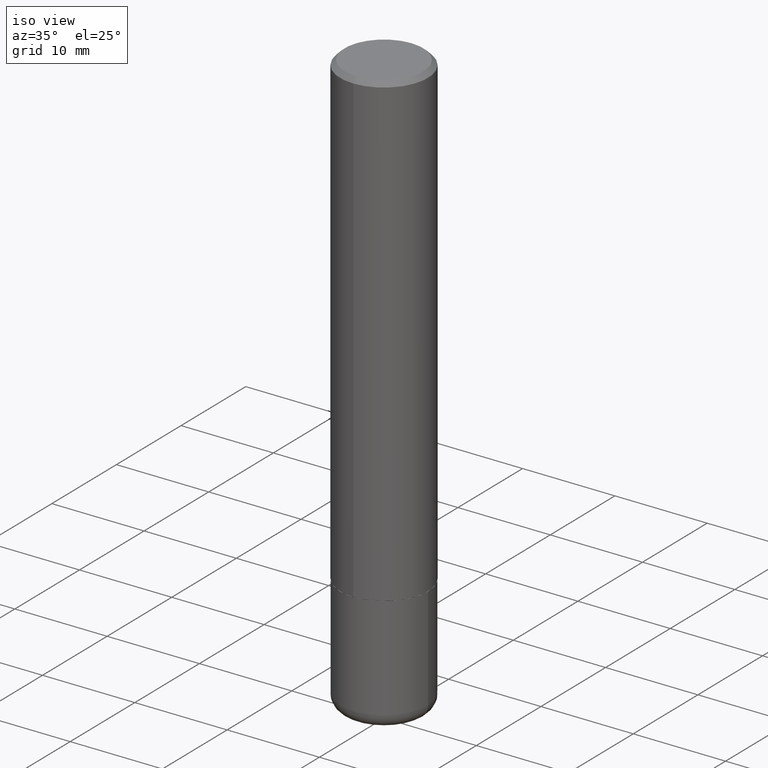
[diagram: clean part render]
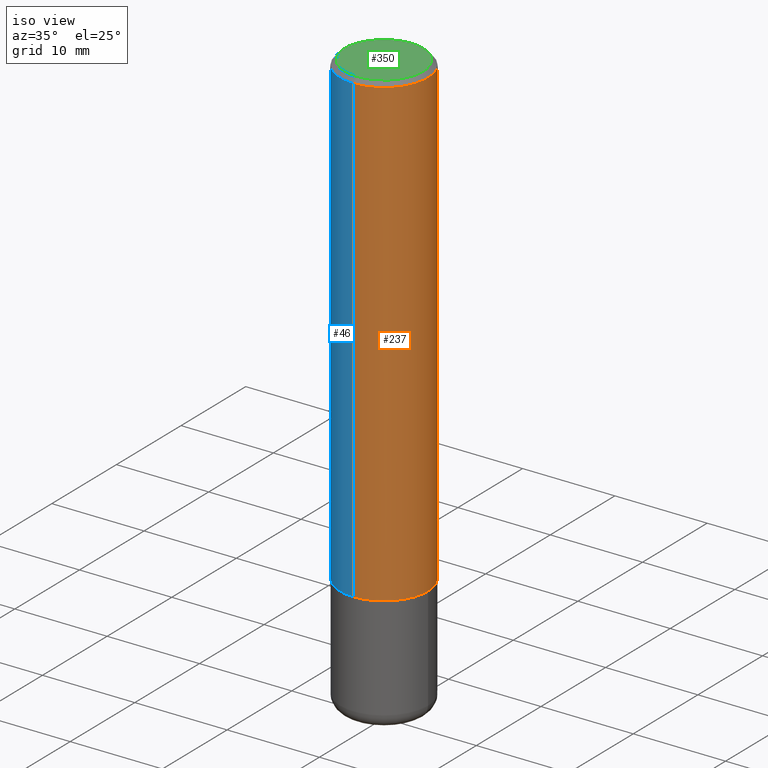
[diagram: same view with three faces highlighted in distinct colors, each labeled with its STEP entity id]
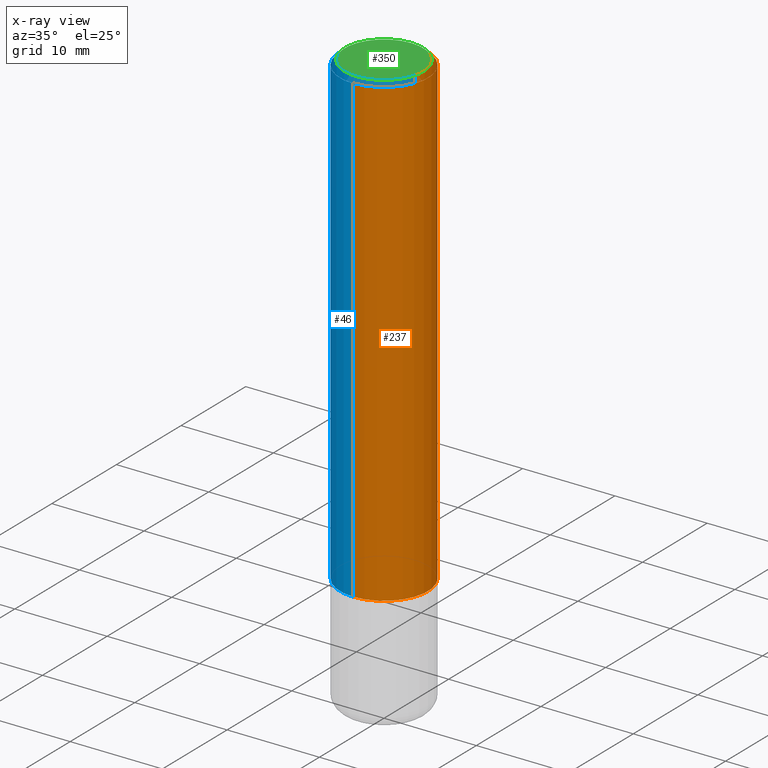
[diagram: x-ray of the same camera — body ghosted, the three highlighted faces saturated]
A machine part, iso view with three faces highlighted in distinct colors.
The next image is the same camera in x-ray (body ghosted, the three faces saturated) — at least one of them is partly hidden behind the body in this view.
Their STEP definitions:

[orange] entity #237 — the highlighted cylindrical surface (partial cylindrical patch) has radius 4.7625 mm, axis along (-0, 0, 1).
#2 = VECTOR ( 'NONE', #366, 39.37007874015748143 ) ;
#3 = AXIS2_PLACEMENT_3D ( 'NONE', #206, #41, #105 ) ;
#18 = ORIENTED_EDGE ( 'NONE', *, *, #240, .F. ) ;
#31 = CARTESIAN_POINT ( 'NONE',  ( 1.332267629550213684E-15, 0.1874999999999933109, -1.999000000000000554 ) ) ;
#36 = EDGE_CURVE ( 'NONE', #412, #45, #138, .T. ) ;
#41 = DIRECTION ( 'NONE',  ( -2.445162114595160575E-29, 3.491920538655792507E-15, 1.000000000000000000 ) ) ;
#45 = VERTEX_POINT ( 'NONE', #76 ) ;
#58 = CARTESIAN_POINT ( 'NONE',  ( 0.000000000000000000, 0.000000000000000000, 0.000000000000000000 ) ) ;
#63 = ORIENTED_EDGE ( 'NONE', *, *, #309, .F. ) ;
#72 = VERTEX_POINT ( 'NONE', #242 ) ;
#76 = CARTESIAN_POINT ( 'NONE',  ( 1.309305502066175797E-15, 0.1874999999999999722, -0.02000000000000069431 ) ) ;
#101 = CIRCLE ( 'NONE', #268, 0.1875000000000002776 ) ;
#104 = EDGE_CURVE ( 'NONE', #411, #412, #101, .T. ) ;
#105 = DIRECTION ( 'NONE',  ( -6.982962677686265922E-15, -1.000000000000000000, 3.483106191921934371E-15 ) ) ;
#113 = DIRECTION ( 'NONE',  ( -2.445162114595160575E-29, 3.491920538655792507E-15, 1.000000000000000000 ) ) ;
#138 = LINE ( 'NONE', #401, #2 ) ;
#161 = ORIENTED_EDGE ( 'NONE', *, *, #36, .T. ) ;
#165 = ORIENTED_EDGE ( 'NONE', *, *, #104, .T. ) ;
#175 = DIRECTION ( 'NONE',  ( -2.445162114595160575E-29, 3.491920538655792507E-15, 1.000000000000000000 ) ) ;
#197 = CYLINDRICAL_SURFACE ( 'NONE', #287, 0.1875000000000001943 ) ;
#199 = DIRECTION ( 'NONE',  ( -2.445162114595160294E-29, 3.491920538655792902E-15, 1.000000000000000000 ) ) ;
#206 = CARTESIAN_POINT ( 'NONE',  ( 4.890324229190331589E-31, -6.983841077311600052E-17, -0.02000000000000004205 ) ) ;
#237 = ADVANCED_FACE ( 'NONE', ( #404 ), #197, .T. ) ;
#240 = EDGE_CURVE ( 'NONE', #411, #72, #380, .T. ) ;
#242 = CARTESIAN_POINT ( 'NONE',  ( -1.286343374582161774E-15, -0.1875000000000001110, -0.01999999999999938979 ) ) ;
#243 = DIRECTION ( 'NONE',  ( -6.982962677686265922E-15, -1.000000000000000000, 3.491920538655792507E-15 ) ) ;
#253 = VECTOR ( 'NONE', #199, 39.37007874015748143 ) ;
#256 = CARTESIAN_POINT ( 'NONE',  ( -1.309305502066176192E-15, -0.1875000000000001943, 6.547351009979617607E-16 ) ) ;
#268 = AXIS2_PLACEMENT_3D ( 'NONE', #270, #175, #365 ) ;
#270 = CARTESIAN_POINT ( 'NONE',  ( 4.887879067075725967E-29, -6.980349156772927879E-15, -1.998999999999999888 ) ) ;
#287 = AXIS2_PLACEMENT_3D ( 'NONE', #58, #113, #243 ) ;
#309 = EDGE_CURVE ( 'NONE', #72, #45, #364, .T. ) ;
#338 = EDGE_LOOP ( 'NONE', ( #165, #161, #63, #18 ) ) ;
#352 = CARTESIAN_POINT ( 'NONE',  ( -1.309305502066128268E-15, -0.1875000000000072442, -1.998999999999999444 ) ) ;
#364 = CIRCLE ( 'NONE', #3, 0.1875000000000000555 ) ;
#365 = DIRECTION ( 'NONE',  ( -6.982962677686266711E-15, -1.000000000000000000, 2.913971193241876428E-15 ) ) ;
#366 = DIRECTION ( 'NONE',  ( -2.445162114595160294E-29, 3.491920538655792902E-15, 1.000000000000000000 ) ) ;
#380 = LINE ( 'NONE', #256, #253 ) ;
#401 = CARTESIAN_POINT ( 'NONE',  ( 1.332267629550188835E-15, 0.1875000000000001943, -6.547351009979617607E-16 ) ) ;
#404 = FACE_OUTER_BOUND ( 'NONE', #338, .T. ) ;
#411 = VERTEX_POINT ( 'NONE', #352 ) ;
#412 = VERTEX_POINT ( 'NONE', #31 ) ;

[blue] entity #46 — the highlighted cylindrical surface (partial cylindrical patch) has radius 4.7625 mm, axis along (-0, 0, 1).
#2 = VECTOR ( 'NONE', #366, 39.37007874015748143 ) ;
#31 = CARTESIAN_POINT ( 'NONE',  ( 1.332267629550213684E-15, 0.1874999999999933109, -1.999000000000000554 ) ) ;
#36 = EDGE_CURVE ( 'NONE', #412, #45, #138, .T. ) ;
#45 = VERTEX_POINT ( 'NONE', #76 ) ;
#46 = ADVANCED_FACE ( 'NONE', ( #238 ), #272, .T. ) ;
#52 = DIRECTION ( 'NONE',  ( -2.445162114595160575E-29, 3.491920538655792507E-15, 1.000000000000000000 ) ) ;
#72 = VERTEX_POINT ( 'NONE', #242 ) ;
#74 = DIRECTION ( 'NONE',  ( -2.445162114595160575E-29, 3.491920538655792507E-15, 1.000000000000000000 ) ) ;
#76 = CARTESIAN_POINT ( 'NONE',  ( 1.309305502066175797E-15, 0.1874999999999999722, -0.02000000000000069431 ) ) ;
#86 = CARTESIAN_POINT ( 'NONE',  ( 4.890324229190331589E-31, -6.983841077311600052E-17, -0.02000000000000004205 ) ) ;
#120 = AXIS2_PLACEMENT_3D ( 'NONE', #367, #263, #328 ) ;
#126 = EDGE_CURVE ( 'NONE', #412, #411, #147, .T. ) ;
#128 = EDGE_LOOP ( 'NONE', ( #387, #277, #145, #363 ) ) ;
#138 = LINE ( 'NONE', #401, #2 ) ;
#145 = ORIENTED_EDGE ( 'NONE', *, *, #240, .T. ) ;
#147 = CIRCLE ( 'NONE', #120, 0.1875000000000002776 ) ;
#177 = DIRECTION ( 'NONE',  ( -6.982962677686265922E-15, -1.000000000000000000, 3.491920538655792507E-15 ) ) ;
#199 = DIRECTION ( 'NONE',  ( -2.445162114595160294E-29, 3.491920538655792902E-15, 1.000000000000000000 ) ) ;
#229 = CIRCLE ( 'NONE', #372, 0.1875000000000000555 ) ;
#238 = FACE_OUTER_BOUND ( 'NONE', #128, .T. ) ;
#240 = EDGE_CURVE ( 'NONE', #411, #72, #380, .T. ) ;
#242 = CARTESIAN_POINT ( 'NONE',  ( -1.286343374582161774E-15, -0.1875000000000001110, -0.01999999999999938979 ) ) ;
#244 = AXIS2_PLACEMENT_3D ( 'NONE', #330, #74, #177 ) ;
#246 = DIRECTION ( 'NONE',  ( -6.982962677686265922E-15, -1.000000000000000000, 3.483106191921934371E-15 ) ) ;
#253 = VECTOR ( 'NONE', #199, 39.37007874015748143 ) ;
#256 = CARTESIAN_POINT ( 'NONE',  ( -1.309305502066176192E-15, -0.1875000000000001943, 6.547351009979617607E-16 ) ) ;
#263 = DIRECTION ( 'NONE',  ( -2.445162114595160575E-29, 3.491920538655792507E-15, 1.000000000000000000 ) ) ;
#267 = EDGE_CURVE ( 'NONE', #45, #72, #229, .T. ) ;
#272 = CYLINDRICAL_SURFACE ( 'NONE', #244, 0.1875000000000001943 ) ;
#277 = ORIENTED_EDGE ( 'NONE', *, *, #126, .T. ) ;
#328 = DIRECTION ( 'NONE',  ( -6.982962677686266711E-15, -1.000000000000000000, 2.913971193241876428E-15 ) ) ;
#330 = CARTESIAN_POINT ( 'NONE',  ( 0.000000000000000000, 0.000000000000000000, 0.000000000000000000 ) ) ;
#352 = CARTESIAN_POINT ( 'NONE',  ( -1.309305502066128268E-15, -0.1875000000000072442, -1.998999999999999444 ) ) ;
#363 = ORIENTED_EDGE ( 'NONE', *, *, #267, .F. ) ;
#366 = DIRECTION ( 'NONE',  ( -2.445162114595160294E-29, 3.491920538655792902E-15, 1.000000000000000000 ) ) ;
#367 = CARTESIAN_POINT ( 'NONE',  ( 4.887879067075725967E-29, -6.980349156772927879E-15, -1.998999999999999888 ) ) ;
#372 = AXIS2_PLACEMENT_3D ( 'NONE', #86, #52, #246 ) ;
#380 = LINE ( 'NONE', #256, #253 ) ;
#387 = ORIENTED_EDGE ( 'NONE', *, *, #36, .F. ) ;
#401 = CARTESIAN_POINT ( 'NONE',  ( 1.332267629550188835E-15, 0.1875000000000001943, -6.547351009979617607E-16 ) ) ;
#411 = VERTEX_POINT ( 'NONE', #352 ) ;
#412 = VERTEX_POINT ( 'NONE', #31 ) ;

[green] entity #350 — the highlighted planar face has unit normal (0, -0, -1).
#11 = CARTESIAN_POINT ( 'NONE',  ( -5.236590585173793708E-46, 7.478341868521650963E-32, 2.141612841912039052E-17 ) ) ;
#23 = CARTESIAN_POINT ( 'NONE',  ( 1.169646248512449595E-15, 0.1675000000000000100, -5.741886260152851058E-16 ) ) ;
#44 = FACE_OUTER_BOUND ( 'NONE', #66, .T. ) ;
#49 = CARTESIAN_POINT ( 'NONE',  ( 1.239475875289312696E-15, 0.1675000000000000100, -5.634805618057250307E-16 ) ) ;
#64 = ORIENTED_EDGE ( 'NONE', *, *, #361, .T. ) ;
#66 = EDGE_LOOP ( 'NONE', ( #202, #64 ) ) ;
#117 = DIRECTION ( 'NONE',  ( -2.445162114595160575E-29, 3.491920538655792507E-15, 1.000000000000000000 ) ) ;
#176 = CARTESIAN_POINT ( 'NONE',  ( -1.217738394604446837E-15, -0.1675000000000000100, 6.063128186439657255E-16 ) ) ;
#185 = PLANE ( 'NONE',  #292 ) ;
#189 = DIRECTION ( 'NONE',  ( -6.982962677686265922E-15, -1.000000000000000000, 3.491920538655792902E-15 ) ) ;
#202 = ORIENTED_EDGE ( 'NONE', *, *, #354, .T. ) ;
#207 = AXIS2_PLACEMENT_3D ( 'NONE', #11, #218, #189 ) ;
#208 = DIRECTION ( 'NONE',  ( -6.982962677686265922E-15, -1.000000000000000000, 3.491920538655792902E-15 ) ) ;
#218 = DIRECTION ( 'NONE',  ( -2.445162114595160575E-29, 3.491920538655792507E-15, 1.000000000000000000 ) ) ;
#269 = CIRCLE ( 'NONE', #207, 0.1675000000000000100 ) ;
#281 = CARTESIAN_POINT ( 'NONE',  ( -5.236590585173793708E-46, 7.478341868521650963E-32, 2.141612841912039052E-17 ) ) ;
#292 = AXIS2_PLACEMENT_3D ( 'NONE', #23, #337, #304 ) ;
#304 = DIRECTION ( 'NONE',  ( 6.982962677686265922E-15, 1.000000000000000000, -3.491920538655792902E-15 ) ) ;
#312 = AXIS2_PLACEMENT_3D ( 'NONE', #281, #117, #208 ) ;
#337 = DIRECTION ( 'NONE',  ( 2.445162114595160014E-29, -3.491920538655792902E-15, -1.000000000000000000 ) ) ;
#348 = VERTEX_POINT ( 'NONE', #49 ) ;
#350 = ADVANCED_FACE ( 'NONE', ( #44 ), #185, .F. ) ;
#354 = EDGE_CURVE ( 'NONE', #348, #356, #386, .T. ) ;
#356 = VERTEX_POINT ( 'NONE', #176 ) ;
#361 = EDGE_CURVE ( 'NONE', #356, #348, #269, .T. ) ;
#386 = CIRCLE ( 'NONE', #312, 0.1675000000000000100 ) ;